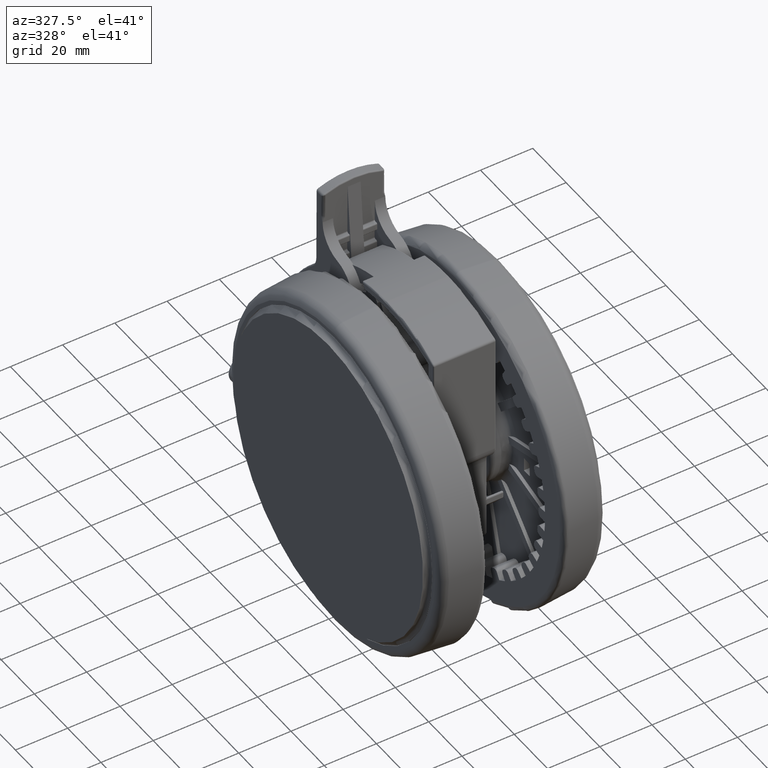
[diagram: clean part render]
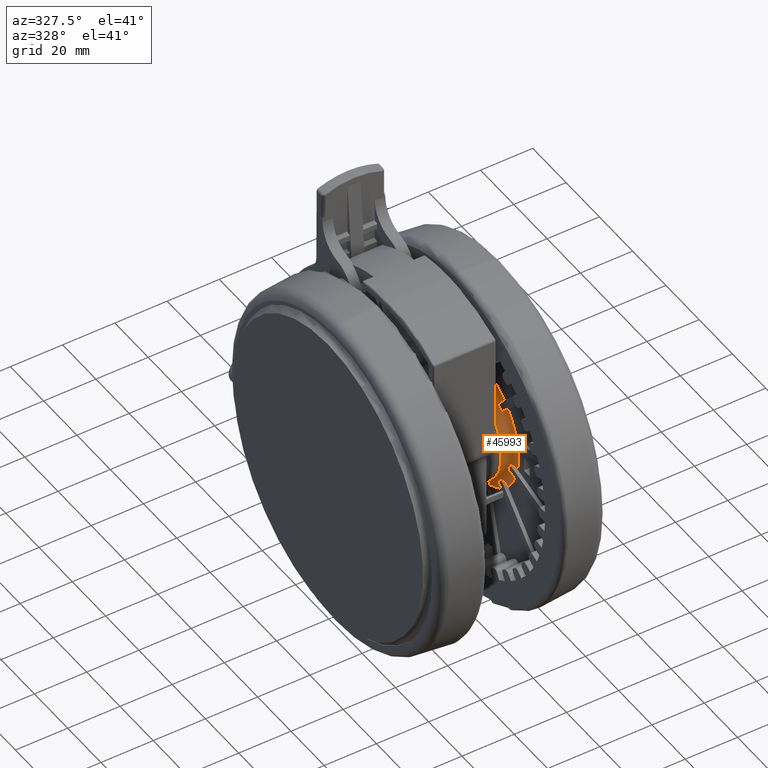
[diagram: same view with one face highlighted and labeled with its STEP entity id]
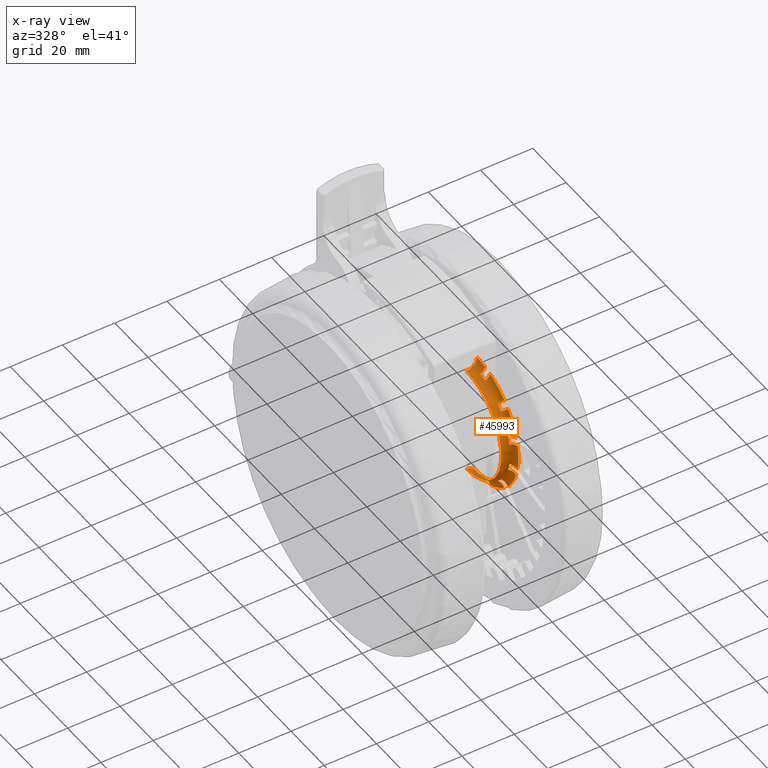
[diagram: x-ray of the same camera — body ghosted, the highlighted face saturated]
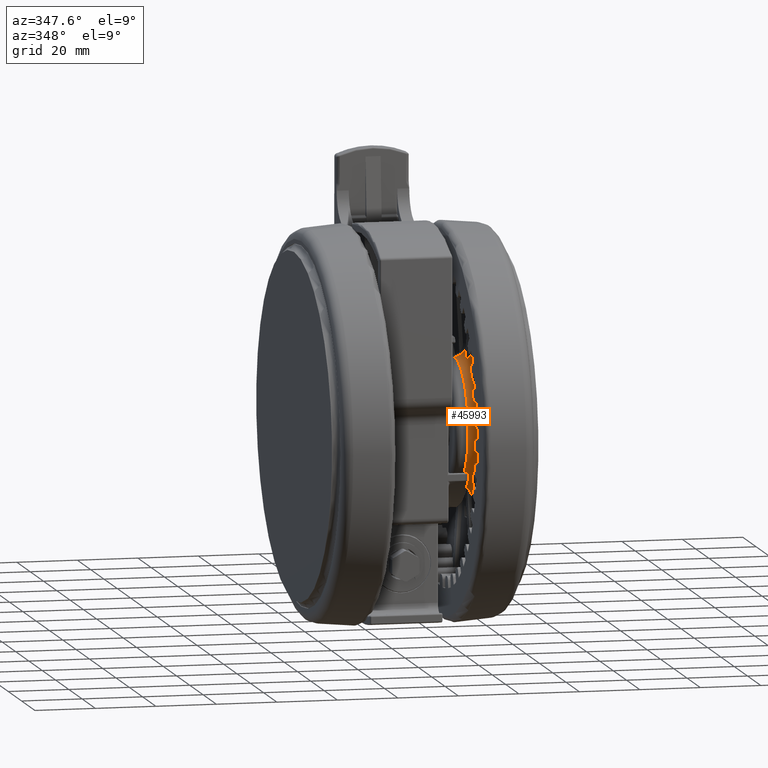
[diagram: same view with one face highlighted and labeled with its STEP entity id]
A machine part, auxiliary view. The second image highlights one B-rep face of the part: STEP entity #45993.
The next image is the same camera in x-ray: the body ghosted, the highlighted face saturated — about 28% of this face is hidden behind the body in this view.
A second angle (auxiliary view) of the same face is appended — the face is thin or edge-on in the first view.
In plain terms, the highlighted toroidal blend (fillet) surface has major radius 25 mm and minor (blend) radius 4 mm.
Its self-contained STEP definition (entity closure, byte-faithful):
#158 = CARTESIAN_POINT ( 'NONE',  ( 25.00000000000002800, -2.469395861776053200E-014, -15.30000000000009700 ) ) ;
#165 = CARTESIAN_POINT ( 'NONE',  ( -7.622878314567270100, -22.66114299445709800, -11.44187204075657900 ) ) ;
#621 = CARTESIAN_POINT ( 'NONE',  ( -17.74316704099160400, -15.62467562809798900, -11.52744413118375500 ) ) ;
#1065 = CARTESIAN_POINT ( 'NONE',  ( 2.775557561562891400E-014, -2.775557561562891400E-014, -11.30000000000009700 ) ) ;
#1347 = CARTESIAN_POINT ( 'NONE',  ( -15.62166795661919700, -17.74581723084486400, -11.52744360111275400 ) ) ;
#1384 = CARTESIAN_POINT ( 'NONE',  ( 7.364304653941260000, -21.68067539087946100, -11.88604643187444200 ) ) ;
#1570 = CARTESIAN_POINT ( 'NONE',  ( 2.775557561562891400E-014, -2.775557561562891400E-014, -15.30000000000009700 ) ) ;
#1836 = CARTESIAN_POINT ( 'NONE',  ( 21.68195037980072800, -7.360504444235726100, -11.88605636745974600 ) ) ;
#2097 = CIRCLE ( 'NONE', #31749, 22.04872908732524900 ) ;
#2139 = CARTESIAN_POINT ( 'NONE',  ( 24.49326988367322500, -5.007966693733967700, -11.30000000000009700 ) ) ;
#2319 = CARTESIAN_POINT ( 'NONE',  ( -22.69063926549826600, -4.529095117299660500, -11.74900329822427000 ) ) ;
#2403 = CARTESIAN_POINT ( 'NONE',  ( 22.45519033163246900, -4.461864923654275100, -11.88793493807189200 ) ) ;
#3207 = CIRCLE ( 'NONE', #23834, 25.00000000000000000 ) ;
#3419 = CARTESIAN_POINT ( 'NONE',  ( 2.775557561562891400E-014, -2.775557561562891400E-014, -12.60000000000009700 ) ) ;
#3516 = B_SPLINE_CURVE_WITH_KNOTS ( 'NONE', 3,
 ( #44966, #25975, #13598, #57510, #19933, #63815, #26240, #70139, #32572, #76472 ),
 .UNSPECIFIED., .F., .F.,
 ( 4, 2, 2, 2, 4 ),
 ( 0.003307861154327460600, 0.004134694003243048600, 0.004961526852158637000, 0.005788359701074224600, 0.006615192549989813000 ),
 .UNSPECIFIED. ) ;
#3793 = ORIENTED_EDGE ( 'NONE', *, *, #44089, .T. ) ;
#3850 = CARTESIAN_POINT ( 'NONE',  ( -22.65987704271283900, -7.626680945777161800, -11.44186814112915100 ) ) ;
#4869 = CARTESIAN_POINT ( 'NONE',  ( 2.775557561562891400E-014, -2.775557561562891400E-014, -15.30000000000009700 ) ) ;
#5084 = CIRCLE ( 'NONE', #44231, 22.04872908732524900 ) ;
#5129 = CIRCLE ( 'NONE', #12007, 25.00000000000000000 ) ;
#5306 = EDGE_CURVE ( 'NONE', #68351, #10150, #15819, .T. ) ;
#5505 = CARTESIAN_POINT ( 'NONE',  ( 4.727828586080772900, -23.43232266815352500, -11.44283357820067300 ) ) ;
#5698 = VERTEX_POINT ( 'NONE', #53501 ) ;
#6068 = VERTEX_POINT ( 'NONE', #20192 ) ;
#6457 = DIRECTION ( 'NONE',  ( -1.000000000000000000, -1.224646799147350500E-016, 0.0000000000000000000 ) ) ;
#6463 = CARTESIAN_POINT ( 'NONE',  ( -7.422472885714408400, -21.91321975186555400, -11.75002553664425900 ) ) ;
#6589 = CARTESIAN_POINT ( 'NONE',  ( -5.007966693733831900, -24.49326988367322500, -11.30000000000009700 ) ) ;
#6854 = VERTEX_POINT ( 'NONE', #74133 ) ;
#6921 = CARTESIAN_POINT ( 'NONE',  ( -17.21231410289082200, -15.09382268999720400, -11.88874880992375600 ) ) ;
#7147 = CARTESIAN_POINT ( 'NONE',  ( -20.99999999999997500, -2.775557561562891400E-014, -15.30000000000009700 ) ) ;
#7374 = DIRECTION ( 'NONE',  ( -1.000000000000000000, 8.881784197001252300E-016, 0.0000000000000000000 ) ) ;
#7383 = CARTESIAN_POINT ( 'NONE',  ( -16.58366131991662200, -18.70781059414227700, -11.30000000000009700 ) ) ;
#7663 = CARTESIAN_POINT ( 'NONE',  ( -15.09080938529918300, -17.21495865952484600, -11.88874758536697700 ) ) ;
#7707 = CARTESIAN_POINT ( 'NONE',  ( 7.193057267809219700, -21.04157144517132100, -12.39412275587401700 ) ) ;
#7992 = EDGE_CURVE ( 'NONE', #52952, #19237, #69567, .T. ) ;
#8005 = EDGE_CURVE ( 'NONE', #12180, #10890, #27099, .T. ) ;
#8162 = CARTESIAN_POINT ( 'NONE',  ( 21.04286714949684300, -7.189262608779529300, -12.39412388951250700 ) ) ;
#8313 = ORIENTED_EDGE ( 'NONE', *, *, #67069, .F. ) ;
#8376 = EDGE_CURVE ( 'NONE', #12180, #17068, #10618, .T. ) ;
#8635 = CARTESIAN_POINT ( 'NONE',  ( -22.01877636961026500, -4.349069996922035700, -12.21060235806989900 ) ) ;
#8707 = CARTESIAN_POINT ( 'NONE',  ( 21.81918398546410000, -4.291447536817393900, -12.39398733930033800 ) ) ;
#9081 = B_SPLINE_CURVE_WITH_KNOTS ( 'NONE', 3,
 ( #33686, #39702, #58591, #77523, #39992, #2319, #46294, #8635, #52571, #14953 ),
 .UNSPECIFIED., .F., .F.,
 ( 4, 2, 2, 2, 4 ),
 ( 0.0005239861712278757800, 0.001350617455153507000, 0.002177248739079138300, 0.003003880023004769500, 0.003830511306930400800 ),
 .UNSPECIFIED. ) ;
#9487 = AXIS2_PLACEMENT_3D ( 'NONE', #11025, #54929, #17326 ) ;
#9723 = DIRECTION ( 'NONE',  ( 1.000000000000000000, 0.0000000000000000000, 0.0000000000000000000 ) ) ;
#10111 = B_SPLINE_CURVE_WITH_KNOTS ( 'NONE', 3,
 ( #25607, #63176, #75816, #38247, #621, #44605, #6921, #50885, #13223, #57145 ),
 .UNSPECIFIED., .F., .F.,
 ( 4, 2, 2, 2, 4 ),
 ( 0.003307861154327459300, 0.004134694003243050300, 0.004961526852158641400, 0.005788359701074232400, 0.006615192549989823400 ),
 .UNSPECIFIED. ) ;
#10150 = VERTEX_POINT ( 'NONE', #31417 ) ;
#10162 = CARTESIAN_POINT ( 'NONE',  ( -21.91195002660781200, -7.426274505814401300, -11.75001706058068000 ) ) ;
#10576 = VERTEX_POINT ( 'NONE', #18431 ) ;
#10618 = CIRCLE ( 'NONE', #49676, 25.00000000000000000 ) ;
#10829 = CARTESIAN_POINT ( 'NONE',  ( 25.00000000000002800, -2.469395861776053200E-014, -11.30000000000009700 ) ) ;
#10890 = VERTEX_POINT ( 'NONE', #28294 ) ;
#11025 = CARTESIAN_POINT ( 'NONE',  ( 2.775557561562891400E-014, -2.775557561562891400E-014, -12.60000000000009700 ) ) ;
#11090 = ORIENTED_EDGE ( 'NONE', *, *, #68198, .F. ) ;
#11200 = DIRECTION ( 'NONE',  ( -1.000000000000000000, 0.0000000000000000000, 0.0000000000000000000 ) ) ;
#11359 = VERTEX_POINT ( 'NONE', #39764 ) ;
#11369 = CARTESIAN_POINT ( 'NONE',  ( 16.58666029277512500, -18.70515170566867600, -11.30000000000009700 ) ) ;
#11821 = CARTESIAN_POINT ( 'NONE',  ( 4.529095117299736900, -22.69063926549829800, -11.74900329822427200 ) ) ;
#12007 = AXIS2_PLACEMENT_3D ( 'NONE', #13353, #57256, #19688 ) ;
#12149 = CARTESIAN_POINT ( 'NONE',  ( 18.70781059414232700, -16.58366131991658000, -11.30000000000009700 ) ) ;
#12180 = VERTEX_POINT ( 'NONE', #61037 ) ;
#12327 = EDGE_CURVE ( 'NONE', #48393, #6068, #10111, .T. ) ;
#12411 = ORIENTED_EDGE ( 'NONE', *, *, #54059, .T. ) ;
#12504 = CARTESIAN_POINT ( 'NONE',  ( -7.905806412363173100, -23.71704503032027500, -11.30000000000009700 ) ) ;
#12775 = CARTESIAN_POINT ( 'NONE',  ( -7.243747230758004600, -21.24620652695222100, -12.20817698919065600 ) ) ;
#13223 = CARTESIAN_POINT ( 'NONE',  ( -16.74763722004176000, -14.62914580714815000, -12.39393944897372700 ) ) ;
#13353 = CARTESIAN_POINT ( 'NONE',  ( 2.775557561562891400E-014, -2.775557561562891400E-014, -11.30000000000009700 ) ) ;
#13598 = CARTESIAN_POINT ( 'NONE',  ( 16.19578032973020900, -18.31427174262373800, -11.32850001858831300 ) ) ;
#13678 = AXIS2_PLACEMENT_3D ( 'NONE', #1570, #20247, #45545 ) ;
#13710 = CARTESIAN_POINT ( 'NONE',  ( 7.909608563756608000, -23.71577728787632800, -11.30000000000009700 ) ) ;
#13941 = CARTESIAN_POINT ( 'NONE',  ( -14.62612602783689100, -16.75027530206255800, -12.39393883725488100 ) ) ;
#14696 = EDGE_CURVE ( 'NONE', #34986, #6854, #3207, .T. ) ;
#14742 = EDGE_CURVE ( 'NONE', #66143, #10576, #60155, .T. ) ;
#14813 = CARTESIAN_POINT ( 'NONE',  ( 2.775557561562891400E-014, -2.775557561562891400E-014, -11.30000000000009700 ) ) ;
#14953 = CARTESIAN_POINT ( 'NONE',  ( -21.63593743785232000, -4.246488614326297700, -12.60000000000009700 ) ) ;
#15286 = VERTEX_POINT ( 'NONE', #39432 ) ;
#15305 = EDGE_CURVE ( 'NONE', #80441, #30376, #9081, .T. ) ;
#15389 = EDGE_CURVE ( 'NONE', #10890, #5698, #2097, .T. ) ;
#15815 = ORIENTED_EDGE ( 'NONE', *, *, #61663, .T. ) ;
#15819 = CIRCLE ( 'NONE', #9487, 22.04872908732524900 ) ;
#16061 = B_SPLINE_CURVE_WITH_KNOTS ( 'NONE', 3,
 ( #79393, #29154, #54381, #16772, #60669, #23129, #67009, #29409, #73303, #35749 ),
 .UNSPECIFIED., .F., .F.,
 ( 4, 2, 2, 2, 4 ),
 ( 0.003307883883644897400, 0.004134723832034152400, 0.004961563780423407800, 0.005788403728812659700, 0.006615243677201911600 ),
 .UNSPECIFIED. ) ;
#16288 = CARTESIAN_POINT ( 'NONE',  ( -16.58366131991662200, -18.70781059414227700, -11.30000000000009700 ) ) ;
#16418 = DIRECTION ( 'NONE',  ( -0.0000000000000000000, -0.0000000000000000000, 1.000000000000000000 ) ) ;
#16476 = CARTESIAN_POINT ( 'NONE',  ( -21.24490781291776600, -7.247541083338690600, -12.20817976899274400 ) ) ;
#16772 = CARTESIAN_POINT ( 'NONE',  ( 17.93149239197763800, -15.80734311775188900, -11.44299753597365300 ) ) ;
#17068 = VERTEX_POINT ( 'NONE', #10829 ) ;
#17326 = DIRECTION ( 'NONE',  ( 1.000000000000000000, 0.0000000000000000000, 0.0000000000000000000 ) ) ;
#18094 = ORIENTED_EDGE ( 'NONE', *, *, #7992, .F. ) ;
#18121 = CARTESIAN_POINT ( 'NONE',  ( 4.349069996922112000, -22.01877636961030400, -12.21060235806990200 ) ) ;
#18431 = CARTESIAN_POINT ( 'NONE',  ( -24.99999999999997500, -2.775557561562891400E-014, -11.30000000000009700 ) ) ;
#18778 = VERTEX_POINT ( 'NONE', #55209 ) ;
#19120 = CARTESIAN_POINT ( 'NONE',  ( -7.140401702038022200, -20.86051576303417600, -12.60000000000009700 ) ) ;
#19237 = VERTEX_POINT ( 'NONE', #47535 ) ;
#19688 = DIRECTION ( 'NONE',  ( -1.000000000000000000, 0.0000000000000000000, 0.0000000000000000000 ) ) ;
#19933 = CARTESIAN_POINT ( 'NONE',  ( 15.62467562809805700, -17.74316704099159400, -11.52744413118375800 ) ) ;
#20055 = CARTESIAN_POINT ( 'NONE',  ( 7.837317105712633000, -23.44598189350295000, -11.30000000000009500 ) ) ;
#20192 = CARTESIAN_POINT ( 'NONE',  ( -16.61402714870777300, -14.49553573581414800, -12.60000000000009700 ) ) ;
#20247 = DIRECTION ( 'NONE',  ( 0.0000000000000000000, 0.0000000000000000000, -1.000000000000000000 ) ) ;
#21093 = DIRECTION ( 'NONE',  ( -0.0000000000000000000, -0.0000000000000000000, 1.000000000000000000 ) ) ;
#21151 = DIRECTION ( 'NONE',  ( -1.000000000000000000, 0.0000000000000000000, 0.0000000000000000000 ) ) ;
#21387 = EDGE_CURVE ( 'NONE', #30054, #30376, #72250, .T. ) ;
#22300 = DIRECTION ( 'NONE',  ( -0.0000000000000000000, -0.0000000000000000000, -1.000000000000000000 ) ) ;
#22639 = ORIENTED_EDGE ( 'NONE', *, *, #8005, .T. ) ;
#22827 = CARTESIAN_POINT ( 'NONE',  ( -20.85921679313977300, -7.144195486061237300, -12.60000000000009700 ) ) ;
#23129 = CARTESIAN_POINT ( 'NONE',  ( 17.38820439119393100, -15.26405511696818500, -11.74938937586892800 ) ) ;
#23834 = AXIS2_PLACEMENT_3D ( 'NONE', #1065, #45039, #7374 ) ;
#24424 = CARTESIAN_POINT ( 'NONE',  ( -4.723900231758137600, -23.43311941485360000, -11.44283165745985500 ) ) ;
#24468 = CARTESIAN_POINT ( 'NONE',  ( 4.246488614326372300, -21.63593743785237700, -12.60000000000009700 ) ) ;
#24755 = AXIS2_PLACEMENT_3D ( 'NONE', #36111, #80016, #42448 ) ;
#24815 = VERTEX_POINT ( 'NONE', #59297 ) ;
#25050 = EDGE_CURVE ( 'NONE', #66499, #68351, #57403, .T. ) ;
#25607 = CARTESIAN_POINT ( 'NONE',  ( -18.70515170566867300, -16.58666029277507900, -11.30000000000009700 ) ) ;
#25625 = TOROIDAL_SURFACE ( 'NONE', #13678, 25.00000000000000000, 4.000000000000000000 ) ;
#25626 = B_SPLINE_CURVE_WITH_KNOTS ( 'NONE', 3,
 ( #64401, #26819, #70713, #33185, #77046, #39496, #1836, #45816, #8162, #52095 ),
 .UNSPECIFIED., .F., .F.,
 ( 4, 2, 2, 2, 4 ),
 ( 0.001347546084473213800, 0.002173628119568467500, 0.002999710154663721600, 0.003825792189758975600, 0.004651874224854229300 ),
 .UNSPECIFIED. ) ;
#25975 = CARTESIAN_POINT ( 'NONE',  ( 16.39175167238482100, -18.51024308527835400, -11.30000000000009700 ) ) ;
#26209 = AXIS2_PLACEMENT_3D ( 'NONE', #35590, #79497, #41920 ) ;
#26240 = CARTESIAN_POINT ( 'NONE',  ( 15.09382268999728000, -17.21231410289080800, -11.88874880992375600 ) ) ;
#26819 = CARTESIAN_POINT ( 'NONE',  ( 23.44723772250660300, -7.833511762122642000, -11.30000000000000200 ) ) ;
#26854 = CARTESIAN_POINT ( 'NONE',  ( -24.99999999999997500, -2.775557561562891400E-014, -15.30000000000009700 ) ) ;
#27099 = B_SPLINE_CURVE_WITH_KNOTS ( 'NONE', 3,
 ( #2139, #77345, #27382, #33761, #77597, #40080, #2403, #46374, #8707, #52659 ),
 .UNSPECIFIED., .F., .F.,
 ( 4, 2, 2, 2, 4 ),
 ( 0.0005231479266617439300, 0.001349784870189810300, 0.002176421813717876500, 0.003003058757245943300, 0.003829695700774009300 ),
 .UNSPECIFIED. ) ;
#27382 = CARTESIAN_POINT ( 'NONE',  ( 23.96155971334307800, -4.865495382986595500, -11.32810822830014200 ) ) ;
#28294 = CARTESIAN_POINT ( 'NONE',  ( 21.63670938893672600, -4.242553616038682300, -12.60000000000009700 ) ) ;
#28553 = ORIENTED_EDGE ( 'NONE', *, *, #15389, .T. ) ;
#28828 = VERTEX_POINT ( 'NONE', #57283 ) ;
#28838 = CARTESIAN_POINT ( 'NONE',  ( -23.71577728787627100, -7.909608563756528100, -11.30000000000009700 ) ) ;
#29154 = CARTESIAN_POINT ( 'NONE',  ( 18.51290027649737600, -16.38875100227161500, -11.30000000000009800 ) ) ;
#29409 = CARTESIAN_POINT ( 'NONE',  ( 16.89682505134646100, -14.77267577712072100, -12.21077384040801300 ) ) ;
#29753 = VERTEX_POINT ( 'NONE', #11369 ) ;
#30054 = VERTEX_POINT ( 'NONE', #39898 ) ;
#30200 = AXIS2_PLACEMENT_3D ( 'NONE', #58676, #21093, #64964 ) ;
#30263 = CARTESIAN_POINT ( 'NONE',  ( 5.011893324651548000, -24.49246670513842600, -11.30000000000009700 ) ) ;
#30376 = VERTEX_POINT ( 'NONE', #64459 ) ;
#30738 = CARTESIAN_POINT ( 'NONE',  ( -4.525165268217601300, -22.69143043367995500, -11.74899988530833800 ) ) ;
#31198 = DIRECTION ( 'NONE',  ( -0.0000000000000000000, -0.0000000000000000000, 1.000000000000000000 ) ) ;
#31417 = CARTESIAN_POINT ( 'NONE',  ( -7.140401702038022200, -20.86051576303417600, -12.60000000000009700 ) ) ;
#31482 = CARTESIAN_POINT ( 'NONE',  ( -7.833511762122501700, -23.44723772250664200, -11.30000000000000100 ) ) ;
#31578 = EDGE_CURVE ( 'NONE', #52952, #11359, #16061, .T. ) ;
#31749 = AXIS2_PLACEMENT_3D ( 'NONE', #3419, #47412, #9723 ) ;
#32572 = CARTESIAN_POINT ( 'NONE',  ( 14.62914580714821600, -16.74763722004176000, -12.39393944897372700 ) ) ;
#32701 = CARTESIAN_POINT ( 'NONE',  ( 7.626680945777248900, -22.65987704271288500, -11.44186814112914200 ) ) ;
#33053 = DIRECTION ( 'NONE',  ( -0.0000000000000000000, -0.0000000000000000000, 1.000000000000000000 ) ) ;
#33185 = CARTESIAN_POINT ( 'NONE',  ( 22.66114299445705900, -7.622878314567407700, -11.44187204075658200 ) ) ;
#33221 = DIRECTION ( 'NONE',  ( 0.0000000000000000000, 0.0000000000000000000, -1.000000000000000000 ) ) ;
#33287 = EDGE_LOOP ( 'NONE', ( #62711, #64534, #50787, #22639, #28553, #8313, #18094, #42527, #73620, #43158, #81329, #41089, #3793, #40124, #73290, #56704, #48125, #74596, #52459, #76083, #15815, #36265, #33954, #12411, #68413, #71189, #11090, #53723 ) ) ;
#33686 = CARTESIAN_POINT ( 'NONE',  ( -24.49246670513841900, -5.011893324651468100, -11.30000000000009700 ) ) ;
#33761 = CARTESIAN_POINT ( 'NONE',  ( 23.43311941485360000, -4.723900231758281400, -11.44283165745985200 ) ) ;
#33954 = ORIENTED_EDGE ( 'NONE', *, *, #44257, .F. ) ;
#34986 = VERTEX_POINT ( 'NONE', #16288 ) ;
#35260 = B_SPLINE_CURVE_WITH_KNOTS ( 'NONE', 3,
 ( #12504, #31482, #37820, #165, #44158, #6463, #50434, #12775, #56694, #19120 ),
 .UNSPECIFIED., .F., .F.,
 ( 4, 2, 2, 2, 4 ),
 ( 0.001347546084473167900, 0.002173628119568421500, 0.002999710154663674700, 0.003825792189758927900, 0.004651874224854181600 ),
 .UNSPECIFIED. ) ;
#35590 = CARTESIAN_POINT ( 'NONE',  ( 2.775557561562891400E-014, -2.775557561562891400E-014, -12.60000000000009700 ) ) ;
#35749 = CARTESIAN_POINT ( 'NONE',  ( 16.61666317710112800, -14.49251390287538800, -12.60000000000009700 ) ) ;
#35861 = CARTESIAN_POINT ( 'NONE',  ( -18.70515170566867300, -16.58666029277507900, -11.30000000000009700 ) ) ;
#36111 = CARTESIAN_POINT ( 'NONE',  ( 2.775557561562891400E-014, -2.775557561562891400E-014, -12.60000000000009700 ) ) ;
#36265 = ORIENTED_EDGE ( 'NONE', *, *, #12327, .F. ) ;
#36732 = B_SPLINE_CURVE_WITH_KNOTS ( 'NONE', 3,
 ( #30263, #55456, #43188, #5505, #49482, #11821, #55731, #18121, #62025, #24468 ),
 .UNSPECIFIED., .F., .F.,
 ( 4, 2, 2, 2, 4 ),
 ( 0.0005239861712279305400, 0.001350617455153551900, 0.002177248739079173400, 0.003003880023004794700, 0.003830511306930416000 ),
 .UNSPECIFIED. ) ;
#36743 = CARTESIAN_POINT ( 'NONE',  ( 2.775557561562891400E-014, -2.775557561562891400E-014, -12.60000000000009700 ) ) ;
#36908 = CIRCLE ( 'NONE', #46079, 21.00000000000000000 ) ;
#37055 = CARTESIAN_POINT ( 'NONE',  ( -4.345136899608282200, -22.01955541522622200, -12.21059975675115100 ) ) ;
#37820 = CARTESIAN_POINT ( 'NONE',  ( -7.762487319494343100, -23.18217089403908200, -11.32883593202879700 ) ) ;
#38247 = CARTESIAN_POINT ( 'NONE',  ( -17.92884038234661800, -15.81034896945300300, -11.44299788809082600 ) ) ;
#39002 = CARTESIAN_POINT ( 'NONE',  ( -15.80734311775191400, -17.93149239197757800, -11.44299753597365000 ) ) ;
#39051 = CARTESIAN_POINT ( 'NONE',  ( 7.426274505814486600, -21.91195002660786500, -11.75001706058067400 ) ) ;
#39432 = CARTESIAN_POINT ( 'NONE',  ( 5.011893324651548000, -24.49246670513842600, -11.30000000000009700 ) ) ;
#39490 = EDGE_CURVE ( 'NONE', #69410, #29753, #78844, .T. ) ;
#39496 = CARTESIAN_POINT ( 'NONE',  ( 21.91321975186552600, -7.422472885714541700, -11.75002553664426600 ) ) ;
#39702 = CARTESIAN_POINT ( 'NONE',  ( -24.22612598923289800, -4.940527544913060800, -11.30000000000009700 ) ) ;
#39764 = CARTESIAN_POINT ( 'NONE',  ( 16.61666317710112800, -14.49251390287538800, -12.60000000000009700 ) ) ;
#39898 = CARTESIAN_POINT ( 'NONE',  ( -20.85921679313977300, -7.144195486061237300, -12.60000000000009700 ) ) ;
#39992 = CARTESIAN_POINT ( 'NONE',  ( -23.17846471525370700, -4.659807552608976200, -11.52743836246046200 ) ) ;
#40080 = CARTESIAN_POINT ( 'NONE',  ( 22.69143043367994700, -4.525165268217741700, -11.74899988530833600 ) ) ;
#40124 = ORIENTED_EDGE ( 'NONE', *, *, #75526, .F. ) ;
#41089 = ORIENTED_EDGE ( 'NONE', *, *, #68109, .T. ) ;
#41524 = CARTESIAN_POINT ( 'NONE',  ( -23.18091811138896600, -7.766293479352376600, -11.32883275863578400 ) ) ;
#41920 = DIRECTION ( 'NONE',  ( 1.000000000000000000, 0.0000000000000000000, 0.0000000000000000000 ) ) ;
#42448 = DIRECTION ( 'NONE',  ( 1.000000000000000000, -8.881784197001252300E-015, 0.0000000000000000000 ) ) ;
#42475 = EDGE_CURVE ( 'NONE', #77499, #66143, #36908, .T. ) ;
#42527 = ORIENTED_EDGE ( 'NONE', *, *, #31578, .T. ) ;
#43094 = DIRECTION ( 'NONE',  ( 1.000000000000000000, 0.0000000000000000000, 0.0000000000000000000 ) ) ;
#43143 = CARTESIAN_POINT ( 'NONE',  ( -4.936599859708284300, -24.22692523311456000, -11.30000000000009800 ) ) ;
#43158 = ORIENTED_EDGE ( 'NONE', *, *, #63349, .F. ) ;
#43188 = CARTESIAN_POINT ( 'NONE',  ( 4.869417390129307000, -23.96073927864555500, -11.32811210155697000 ) ) ;
#43404 = CARTESIAN_POINT ( 'NONE',  ( -4.242553616038552600, -21.63670938893672600, -12.60000000000009700 ) ) ;
#43620 = CARTESIAN_POINT ( 'NONE',  ( 4.246488614326372300, -21.63593743785237700, -12.60000000000009700 ) ) ;
#43722 = EDGE_CURVE ( 'NONE', #6854, #10150, #35260, .T. ) ;
#44089 = EDGE_CURVE ( 'NONE', #24815, #52363, #68975, .T. ) ;
#44150 = DIRECTION ( 'NONE',  ( -1.224646799147353200E-016, 1.000000000000000000, 0.0000000000000000000 ) ) ;
#44158 = CARTESIAN_POINT ( 'NONE',  ( -7.553534486203489900, -22.40234830381212600, -11.52763969248961100 ) ) ;
#44231 = AXIS2_PLACEMENT_3D ( 'NONE', #36743, #80663, #43094 ) ;
#44257 = EDGE_CURVE ( 'NONE', #74915, #48393, #5129, .T. ) ;
#44605 = CARTESIAN_POINT ( 'NONE',  ( -17.38555784112793000, -15.26706642823431400, -11.74939037810089100 ) ) ;
#44887 = AXIS2_PLACEMENT_3D ( 'NONE', #26854, #70749, #33221 ) ;
#44966 = CARTESIAN_POINT ( 'NONE',  ( 16.58666029277512500, -18.70515170566867600, -11.30000000000009700 ) ) ;
#45039 = DIRECTION ( 'NONE',  ( -0.0000000000000000000, -0.0000000000000000000, 1.000000000000000000 ) ) ;
#45045 = CARTESIAN_POINT ( 'NONE',  ( -16.38875100227165400, -18.51290027649731200, -11.30000000000009800 ) ) ;
#45310 = CARTESIAN_POINT ( 'NONE',  ( -15.26405511696820800, -17.38820439119387400, -11.74938937586892300 ) ) ;
#45354 = CARTESIAN_POINT ( 'NONE',  ( 7.247541083338772300, -21.24490781291781300, -12.20817976899273000 ) ) ;
#45545 = DIRECTION ( 'NONE',  ( -1.000000000000000000, 0.0000000000000000000, 0.0000000000000000000 ) ) ;
#45816 = CARTESIAN_POINT ( 'NONE',  ( 21.24620652695218200, -7.243747230758134300, -12.20817698919066700 ) ) ;
#45993 = ADVANCED_FACE ( 'NONE', ( #75692 ), #25625, .F. ) ;
#46079 = AXIS2_PLACEMENT_3D ( 'NONE', #4869, #48858, #11200 ) ;
#46294 = CARTESIAN_POINT ( 'NONE',  ( -22.45439583371094000, -4.465793880535089000, -11.88794356018254200 ) ) ;
#46374 = CARTESIAN_POINT ( 'NONE',  ( 22.01955541522621500, -4.345136899608421600, -12.21059975675113700 ) ) ;
#47389 = CIRCLE ( 'NONE', #73623, 4.000000000000000000 ) ;
#47412 = DIRECTION ( 'NONE',  ( -0.0000000000000000000, -0.0000000000000000000, -1.000000000000000000 ) ) ;
#47535 = CARTESIAN_POINT ( 'NONE',  ( 23.71704503032022900, -7.905806412363318700, -11.30000000000009700 ) ) ;
#47828 = CARTESIAN_POINT ( 'NONE',  ( -22.40107036529797900, -7.557333905568069300, -11.52763909782138900 ) ) ;
#48125 = ORIENTED_EDGE ( 'NONE', *, *, #5306, .T. ) ;
#48393 = VERTEX_POINT ( 'NONE', #35861 ) ;
#48858 = DIRECTION ( 'NONE',  ( 0.0000000000000000000, 0.0000000000000000000, -1.000000000000000000 ) ) ;
#49434 = CARTESIAN_POINT ( 'NONE',  ( -4.865495382986450700, -23.96155971334308500, -11.32810822830014400 ) ) ;
#49482 = CARTESIAN_POINT ( 'NONE',  ( 4.659807552609057000, -23.17846471525373500, -11.52743836246046900 ) ) ;
#49676 = AXIS2_PLACEMENT_3D ( 'NONE', #68743, #31198, #75056 ) ;
#50434 = CARTESIAN_POINT ( 'NONE',  ( -7.360504444235593800, -21.68195037980076700, -11.88605636745973900 ) ) ;
#50787 = ORIENTED_EDGE ( 'NONE', *, *, #8376, .F. ) ;
#50885 = CARTESIAN_POINT ( 'NONE',  ( -16.89418482679623400, -14.77569341390261900, -12.21077477133582300 ) ) ;
#51599 = CARTESIAN_POINT ( 'NONE',  ( -14.77267577712073700, -16.89682505134640800, -12.21077384040801000 ) ) ;
#51632 = CARTESIAN_POINT ( 'NONE',  ( 7.144195486061307500, -20.85921679313982900, -12.60000000000009700 ) ) ;
#52095 = CARTESIAN_POINT ( 'NONE',  ( 20.86051576303413000, -7.140401702038147400, -12.60000000000009700 ) ) ;
#52363 = VERTEX_POINT ( 'NONE', #43620 ) ;
#52459 = ORIENTED_EDGE ( 'NONE', *, *, #14696, .F. ) ;
#52571 = CARTESIAN_POINT ( 'NONE',  ( -21.81840954015164500, -4.295381866778613200, -12.39398760040984400 ) ) ;
#52659 = CARTESIAN_POINT ( 'NONE',  ( 21.63670938893672600, -4.242553616038682300, -12.60000000000009700 ) ) ;
#52952 = VERTEX_POINT ( 'NONE', #12149 ) ;
#53501 = CARTESIAN_POINT ( 'NONE',  ( 20.86051576303413000, -7.140401702038147400, -12.60000000000009700 ) ) ;
#53723 = ORIENTED_EDGE ( 'NONE', *, *, #14742, .F. ) ;
#54028 = CARTESIAN_POINT ( 'NONE',  ( 2.775557561562891400E-014, -2.775557561562891400E-014, -11.30000000000009700 ) ) ;
#54059 = EDGE_CURVE ( 'NONE', #74915, #30054, #73954, .T. ) ;
#54083 = CARTESIAN_POINT ( 'NONE',  ( -21.68067539087941500, -7.364304653941176500, -11.88604643187444900 ) ) ;
#54381 = CARTESIAN_POINT ( 'NONE',  ( 18.31692739584990200, -16.19277812162415500, -11.32849991970696600 ) ) ;
#54929 = DIRECTION ( 'NONE',  ( -0.0000000000000000000, -0.0000000000000000000, -1.000000000000000000 ) ) ;
#55209 = CARTESIAN_POINT ( 'NONE',  ( -14.49251390287539300, -16.61666317710107800, -12.60000000000009700 ) ) ;
#55456 = CARTESIAN_POINT ( 'NONE',  ( 4.940527544913138900, -24.22612598923290200, -11.30000000000009800 ) ) ;
#55731 = CARTESIAN_POINT ( 'NONE',  ( 4.465793880535168000, -22.45439583371096900, -11.88794356018254700 ) ) ;
#55843 = CARTESIAN_POINT ( 'NONE',  ( 21.00000000000002800, -2.493888797759000200E-014, -15.30000000000009700 ) ) ;
#56012 = B_SPLINE_CURVE_WITH_KNOTS ( 'NONE', 3,
 ( #7383, #45045, #76547, #39002, #1347, #45310, #7663, #51599, #13941, #57864 ),
 .UNSPECIFIED., .F., .F.,
 ( 4, 2, 2, 2, 4 ),
 ( 0.003307883883644838500, 0.004134723832034096900, 0.004961563780423355700, 0.005788403728812617200, 0.006615243677201879500 ),
 .UNSPECIFIED. ) ;
#56694 = CARTESIAN_POINT ( 'NONE',  ( -7.189262608779399600, -21.04286714949687800, -12.39412388951249100 ) ) ;
#56704 = ORIENTED_EDGE ( 'NONE', *, *, #25050, .T. ) ;
#57145 = CARTESIAN_POINT ( 'NONE',  ( -16.61402714870777300, -14.49553573581414800, -12.60000000000009700 ) ) ;
#57256 = DIRECTION ( 'NONE',  ( -0.0000000000000000000, -0.0000000000000000000, 1.000000000000000000 ) ) ;
#57283 = CARTESIAN_POINT ( 'NONE',  ( 14.49553573581420800, -16.61402714870778000, -12.60000000000009700 ) ) ;
#57403 = B_SPLINE_CURVE_WITH_KNOTS ( 'NONE', 3,
 ( #61964, #43143, #49434, #24424, #68305, #30738, #74606, #37055, #80981, #43404 ),
 .UNSPECIFIED., .F., .F.,
 ( 4, 2, 2, 2, 4 ),
 ( 0.0005231479266617360200, 0.001349784870189802300, 0.002176421813717868300, 0.003003058757245934600, 0.003829695700774000600 ),
 .UNSPECIFIED. ) ;
#57510 = CARTESIAN_POINT ( 'NONE',  ( 15.81034896945307200, -17.92884038234660300, -11.44299788809082600 ) ) ;
#57864 = CARTESIAN_POINT ( 'NONE',  ( -14.49251390287539300, -16.61666317710107800, -12.60000000000009700 ) ) ;
#58591 = CARTESIAN_POINT ( 'NONE',  ( -23.96073927864555100, -4.869417390129227000, -11.32811210155696800 ) ) ;
#58676 = CARTESIAN_POINT ( 'NONE',  ( 2.775557561562891400E-014, -2.775557561562891400E-014, -11.30000000000009700 ) ) ;
#58743 = DIRECTION ( 'NONE',  ( -0.0000000000000000000, -0.0000000000000000000, 1.000000000000000000 ) ) ;
#59297 = CARTESIAN_POINT ( 'NONE',  ( 7.144195486061307500, -20.85921679313982900, -12.60000000000009700 ) ) ;
#59864 = CARTESIAN_POINT ( 'NONE',  ( 2.775557561562891400E-014, -2.775557561562891400E-014, -12.60000000000009700 ) ) ;
#59987 = CARTESIAN_POINT ( 'NONE',  ( 7.909608563756608000, -23.71577728787632800, -11.30000000000009700 ) ) ;
#60155 = CIRCLE ( 'NONE', #44887, 3.999999999999998200 ) ;
#60320 = DIRECTION ( 'NONE',  ( -1.000000000000000000, -8.881784197001252300E-016, 0.0000000000000000000 ) ) ;
#60374 = CARTESIAN_POINT ( 'NONE',  ( -21.04157144517128200, -7.193057267809142500, -12.39412275587402900 ) ) ;
#60580 = AXIS2_PLACEMENT_3D ( 'NONE', #54028, #16418, #60320 ) ;
#60669 = CARTESIAN_POINT ( 'NONE',  ( 17.74581723084492800, -15.62166795661917400, -11.52744360111275900 ) ) ;
#61037 = CARTESIAN_POINT ( 'NONE',  ( 24.49326988367322500, -5.007966693733967700, -11.30000000000009700 ) ) ;
#61591 = CARTESIAN_POINT ( 'NONE',  ( -23.71577728787627100, -7.909608563756528100, -11.30000000000009700 ) ) ;
#61663 = EDGE_CURVE ( 'NONE', #18778, #6068, #5084, .T. ) ;
#61741 = EDGE_CURVE ( 'NONE', #77499, #17068, #47389, .T. ) ;
#61808 = CIRCLE ( 'NONE', #66341, 25.00000000000000000 ) ;
#61964 = CARTESIAN_POINT ( 'NONE',  ( -5.007966693733831900, -24.49326988367322500, -11.30000000000009700 ) ) ;
#62025 = CARTESIAN_POINT ( 'NONE',  ( 4.295381866778693200, -21.81840954015168400, -12.39398760040984000 ) ) ;
#62585 = EDGE_CURVE ( 'NONE', #11359, #28828, #72317, .T. ) ;
#62711 = ORIENTED_EDGE ( 'NONE', *, *, #42475, .F. ) ;
#63026 = AXIS2_PLACEMENT_3D ( 'NONE', #14813, #58743, #21151 ) ;
#63176 = CARTESIAN_POINT ( 'NONE',  ( -18.51024308527837500, -16.39175167238475000, -11.30000000000009700 ) ) ;
#63349 = EDGE_CURVE ( 'NONE', #29753, #28828, #3516, .T. ) ;
#63815 = CARTESIAN_POINT ( 'NONE',  ( 15.26706642823438600, -17.38555784112791300, -11.74939037810088900 ) ) ;
#64401 = CARTESIAN_POINT ( 'NONE',  ( 23.71704503032022900, -7.905806412363318700, -11.30000000000009700 ) ) ;
#64459 = CARTESIAN_POINT ( 'NONE',  ( -21.63593743785232000, -4.246488614326297700, -12.60000000000009700 ) ) ;
#64534 = ORIENTED_EDGE ( 'NONE', *, *, #61741, .T. ) ;
#64964 = DIRECTION ( 'NONE',  ( -1.000000000000000000, 0.0000000000000000000, 0.0000000000000000000 ) ) ;
#66143 = VERTEX_POINT ( 'NONE', #7147 ) ;
#66178 = DIRECTION ( 'NONE',  ( 1.000000000000000000, 0.0000000000000000000, 0.0000000000000000000 ) ) ;
#66341 = AXIS2_PLACEMENT_3D ( 'NONE', #70601, #33053, #76930 ) ;
#66499 = VERTEX_POINT ( 'NONE', #6589 ) ;
#67009 = CARTESIAN_POINT ( 'NONE',  ( 17.21495865952490300, -15.09080938529916200, -11.88874758536698600 ) ) ;
#67069 = EDGE_CURVE ( 'NONE', #19237, #5698, #25626, .T. ) ;
#67222 = CARTESIAN_POINT ( 'NONE',  ( -24.49246670513841900, -5.011893324651468100, -11.30000000000009700 ) ) ;
#67394 = AXIS2_PLACEMENT_3D ( 'NONE', #59864, #22300, #66178 ) ;
#68109 = EDGE_CURVE ( 'NONE', #69410, #24815, #75623, .T. ) ;
#68198 = EDGE_CURVE ( 'NONE', #10576, #80441, #79477, .T. ) ;
#68305 = CARTESIAN_POINT ( 'NONE',  ( -4.655877800282382000, -23.17925624453170400, -11.52743794179081000 ) ) ;
#68351 = VERTEX_POINT ( 'NONE', #73247 ) ;
#68413 = ORIENTED_EDGE ( 'NONE', *, *, #21387, .T. ) ;
#68743 = CARTESIAN_POINT ( 'NONE',  ( 2.775557561562891400E-014, -2.775557561562891400E-014, -11.30000000000009700 ) ) ;
#68802 = EDGE_CURVE ( 'NONE', #34986, #18778, #56012, .T. ) ;
#68975 = CIRCLE ( 'NONE', #26209, 22.04872908732524900 ) ;
#69410 = VERTEX_POINT ( 'NONE', #59987 ) ;
#69567 = CIRCLE ( 'NONE', #30200, 25.00000000000000000 ) ;
#70139 = CARTESIAN_POINT ( 'NONE',  ( 14.77569341390269000, -16.89418482679622000, -12.21077477133582100 ) ) ;
#70249 = CARTESIAN_POINT ( 'NONE',  ( 7.766293479352466300, -23.18091811138901200, -11.32883275863577500 ) ) ;
#70601 = CARTESIAN_POINT ( 'NONE',  ( 2.775557561562891400E-014, -2.775557561562891400E-014, -11.30000000000009700 ) ) ;
#70713 = CARTESIAN_POINT ( 'NONE',  ( 23.18217089403904300, -7.762487319494482600, -11.32883593202880100 ) ) ;
#70749 = DIRECTION ( 'NONE',  ( -0.0000000000000000000, -1.000000000000000000, -0.0000000000000000000 ) ) ;
#71189 = ORIENTED_EDGE ( 'NONE', *, *, #15305, .F. ) ;
#72250 = CIRCLE ( 'NONE', #24755, 22.04872908732524900 ) ;
#72317 = CIRCLE ( 'NONE', #67394, 22.04872908732524900 ) ;
#73247 = CARTESIAN_POINT ( 'NONE',  ( -4.242553616038552600, -21.63670938893672600, -12.60000000000009700 ) ) ;
#73290 = ORIENTED_EDGE ( 'NONE', *, *, #75193, .F. ) ;
#73303 = CARTESIAN_POINT ( 'NONE',  ( 16.75027530206261500, -14.62612602783687300, -12.39393883725487600 ) ) ;
#73620 = ORIENTED_EDGE ( 'NONE', *, *, #62585, .T. ) ;
#73623 = AXIS2_PLACEMENT_3D ( 'NONE', #158, #44150, #6457 ) ;
#73954 = B_SPLINE_CURVE_WITH_KNOTS ( 'NONE', 3,
 ( #28838, #78827, #41524, #3850, #47828, #10162, #54083, #16476, #60374, #22827 ),
 .UNSPECIFIED., .F., .F.,
 ( 4, 2, 2, 2, 4 ),
 ( 0.001348916626820414500, 0.002175007833610621100, 0.003001099040400827800, 0.003827190247191034400, 0.004653281453981241100 ),
 .UNSPECIFIED. ) ;
#74133 = CARTESIAN_POINT ( 'NONE',  ( -7.905806412363173100, -23.71704503032027500, -11.30000000000009700 ) ) ;
#74596 = ORIENTED_EDGE ( 'NONE', *, *, #43722, .F. ) ;
#74606 = CARTESIAN_POINT ( 'NONE',  ( -4.461864923654134800, -22.45519033163248000, -11.88793493807190200 ) ) ;
#74915 = VERTEX_POINT ( 'NONE', #61591 ) ;
#75056 = DIRECTION ( 'NONE',  ( -1.000000000000000000, 7.105427357601001900E-015, 0.0000000000000000000 ) ) ;
#75193 = EDGE_CURVE ( 'NONE', #66499, #15286, #61808, .T. ) ;
#75526 = EDGE_CURVE ( 'NONE', #15286, #52363, #36732, .T. ) ;
#75623 = B_SPLINE_CURVE_WITH_KNOTS ( 'NONE', 3,
 ( #13710, #20055, #70249, #32701, #76586, #39051, #1384, #45354, #7707, #51632 ),
 .UNSPECIFIED., .F., .F.,
 ( 4, 2, 2, 2, 4 ),
 ( 0.001348916626820419700, 0.002175007833610628500, 0.003001099040400837300, 0.003827190247191046100, 0.004653281453981254900 ),
 .UNSPECIFIED. ) ;
#75692 = FACE_OUTER_BOUND ( 'NONE', #33287, .T. ) ;
#75816 = CARTESIAN_POINT ( 'NONE',  ( -18.31427174262375200, -16.19578032973013700, -11.32850001858831000 ) ) ;
#76083 = ORIENTED_EDGE ( 'NONE', *, *, #68802, .T. ) ;
#76472 = CARTESIAN_POINT ( 'NONE',  ( 14.49553573581420800, -16.61402714870778000, -12.60000000000009700 ) ) ;
#76547 = CARTESIAN_POINT ( 'NONE',  ( -16.19277812162418700, -18.31692739584985200, -11.32849991970696700 ) ) ;
#76586 = CARTESIAN_POINT ( 'NONE',  ( 7.557333905568154500, -22.40107036529802200, -11.52763909782137800 ) ) ;
#76930 = DIRECTION ( 'NONE',  ( -1.000000000000000000, 0.0000000000000000000, 0.0000000000000000000 ) ) ;
#77046 = CARTESIAN_POINT ( 'NONE',  ( 22.40234830381208700, -7.553534486203624900, -11.52763969248961800 ) ) ;
#77345 = CARTESIAN_POINT ( 'NONE',  ( 24.22692523311454900, -4.936599859708425500, -11.30000000000009500 ) ) ;
#77499 = VERTEX_POINT ( 'NONE', #55843 ) ;
#77523 = CARTESIAN_POINT ( 'NONE',  ( -23.43232266815350000, -4.727828586080693000, -11.44283357820066600 ) ) ;
#77597 = CARTESIAN_POINT ( 'NONE',  ( 23.17925624453170000, -4.655877800282524100, -11.52743794179081000 ) ) ;
#78827 = CARTESIAN_POINT ( 'NONE',  ( -23.44598189350289600, -7.837317105712542400, -11.30000000000010000 ) ) ;
#78844 = CIRCLE ( 'NONE', #60580, 25.00000000000000000 ) ;
#79393 = CARTESIAN_POINT ( 'NONE',  ( 18.70781059414232700, -16.58366131991658000, -11.30000000000009700 ) ) ;
#79477 = CIRCLE ( 'NONE', #63026, 25.00000000000000000 ) ;
#79497 = DIRECTION ( 'NONE',  ( -0.0000000000000000000, -0.0000000000000000000, -1.000000000000000000 ) ) ;
#80016 = DIRECTION ( 'NONE',  ( -0.0000000000000000000, -0.0000000000000000000, -1.000000000000000000 ) ) ;
#80441 = VERTEX_POINT ( 'NONE', #67222 ) ;
#80663 = DIRECTION ( 'NONE',  ( -0.0000000000000000000, -0.0000000000000000000, -1.000000000000000000 ) ) ;
#80981 = CARTESIAN_POINT ( 'NONE',  ( -4.291447536817257100, -21.81918398546411100, -12.39398733930034900 ) ) ;
#81329 = ORIENTED_EDGE ( 'NONE', *, *, #39490, .F. ) ;